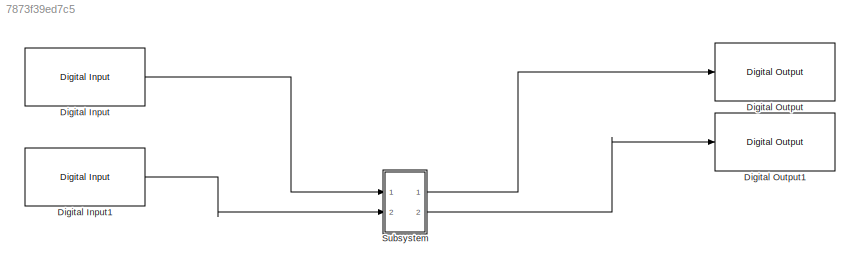
MODEL slx_7873f39ed7c5
KIND model
CONFIG AbsTol = auto
CONFIG EnableMultiTasking = on
CONFIG FixedStep = auto
CONFIG MaxStep = auto
CONFIG MinStep = auto
CONFIG RelTol = 1e-3
CONFIG SampleTimeConstraint = Unconstrained
CONFIG SolverName = FixedStepAuto
CONFIG StartTime = 0.0
CONFIG StopTime = 10.0
BLOCK [Reference] Digital Input  REF=arduinolib/Digital Input
  Ports = [0, 1]
  SourceBlock = arduinolib/Digital Input
  SourceProductBaseCode = ARDUINO
  SourceType = Arduino Digital Input
BLOCK [Reference] Digital Input1  REF=arduinolib/Digital Input
  Ports = [0, 1]
  SourceBlock = arduinolib/Digital Input
  SourceProductBaseCode = ARDUINO
  SourceType = Arduino Digital Input
BLOCK [Reference] Digital Output  REF=arduinolib/Digital Output
  Ports = [1]
  SourceBlock = arduinolib/Digital Output
  SourceProductBaseCode = ARDUINO
  SourceType = Arduino Digital Output
BLOCK [Reference] Digital Output1  REF=arduinolib/Digital Output
  Ports = [1]
  SourceBlock = arduinolib/Digital Output
  SourceProductBaseCode = ARDUINO
  SourceType = Arduino Digital Output
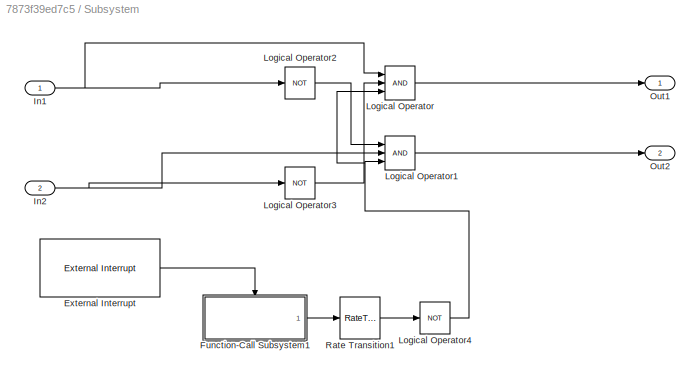
BLOCK [SubSystem] Subsystem
  Ports = [2, 2]
  RequestExecContextInheritance = off
BLOCK [Reference] Subsystem/External Interrupt  REF=arduinolib/External Interrupt
  Ports = [0, 1]
  SourceBlock = arduinolib/External Interrupt
  SourceProductBaseCode = ARDUINO
  SourceType = Arduino Interrupt Block
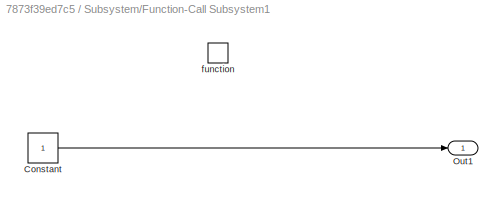
BLOCK [SubSystem] Subsystem/Function-Call Subsystem1
  Ports = [0, 1, 0, 1]
  RequestExecContextInheritance = off
  TreatAsAtomicUnit = on
BLOCK [Constant] Subsystem/Function-Call Subsystem1/Constant
BLOCK [Outport] Subsystem/Function-Call Subsystem1/Out1
  VectorParamsAs1DForOutWhenUnconnected = off
BLOCK [TriggerPort] Subsystem/Function-Call Subsystem1/function
  Ports = []
  StatesWhenEnabling = held
  TriggerType = function-call
  VariantControl = Variant
BLOCK [Inport] Subsystem/In1
BLOCK [Inport] Subsystem/In2
  Port = 2
BLOCK [Logic] Subsystem/Logical Operator
  AllPortsSameDT = off
  Inputs = 3
  OutDataTypeStr = boolean
  Ports = [3, 1]
BLOCK [Logic] Subsystem/Logical Operator1
  AllPortsSameDT = off
  Inputs = 3
  OutDataTypeStr = boolean
  Ports = [3, 1]
BLOCK [Logic] Subsystem/Logical Operator2
  AllPortsSameDT = off
  Operator = NOT
  OutDataTypeStr = boolean
  Ports = [1, 1]
BLOCK [Logic] Subsystem/Logical Operator3
  AllPortsSameDT = off
  Operator = NOT
  OutDataTypeStr = boolean
  Ports = [1, 1]
BLOCK [Logic] Subsystem/Logical Operator4
  AllPortsSameDT = off
  Operator = NOT
  OutDataTypeStr = boolean
  Ports = [1, 1]
BLOCK [Outport] Subsystem/Out1
BLOCK [Outport] Subsystem/Out2
  Port = 2
BLOCK [RateTransition] Subsystem/Rate Transition1
  Deterministic = off
LINE Digital Input1:1 -> Subsystem:2
LINE Digital Input:1 -> Subsystem:1
LINE Subsystem/External Interrupt:1 -> Subsystem/Function-Call Subsystem1:trigger
LINE Subsystem/Function-Call Subsystem1/Constant:1 -> Subsystem/Function-Call Subsystem1/Out1:1
LINE Subsystem/Function-Call Subsystem1:1 -> Subsystem/Rate Transition1:1
NET Subsystem/In1:1 -> Subsystem/Logical Operator2:1, Subsystem/Logical Operator:1
NET Subsystem/In2:1 -> Subsystem/Logical Operator1:2, Subsystem/Logical Operator3:1
LINE Subsystem/Logical Operator1:1 -> Subsystem/Out2:1
LINE Subsystem/Logical Operator2:1 -> Subsystem/Logical Operator1:1
LINE Subsystem/Logical Operator3:1 -> Subsystem/Logical Operator:2
NET Subsystem/Logical Operator4:1 -> Subsystem/Logical Operator1:3, Subsystem/Logical Operator:3
LINE Subsystem/Logical Operator:1 -> Subsystem/Out1:1
LINE Subsystem/Rate Transition1:1 -> Subsystem/Logical Operator4:1
LINE Subsystem:1 -> Digital Output:1
LINE Subsystem:2 -> Digital Output1:1
note: NET lines group one-source signal fan-out (src -> all destinations, sorted); 1:1 wires keep LINE
